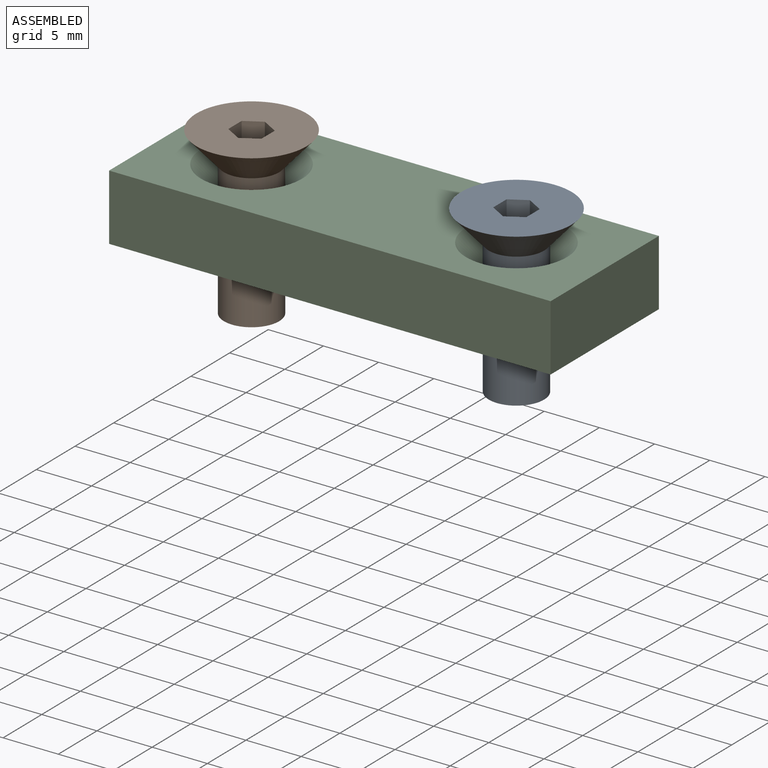
[diagram: assembled view]
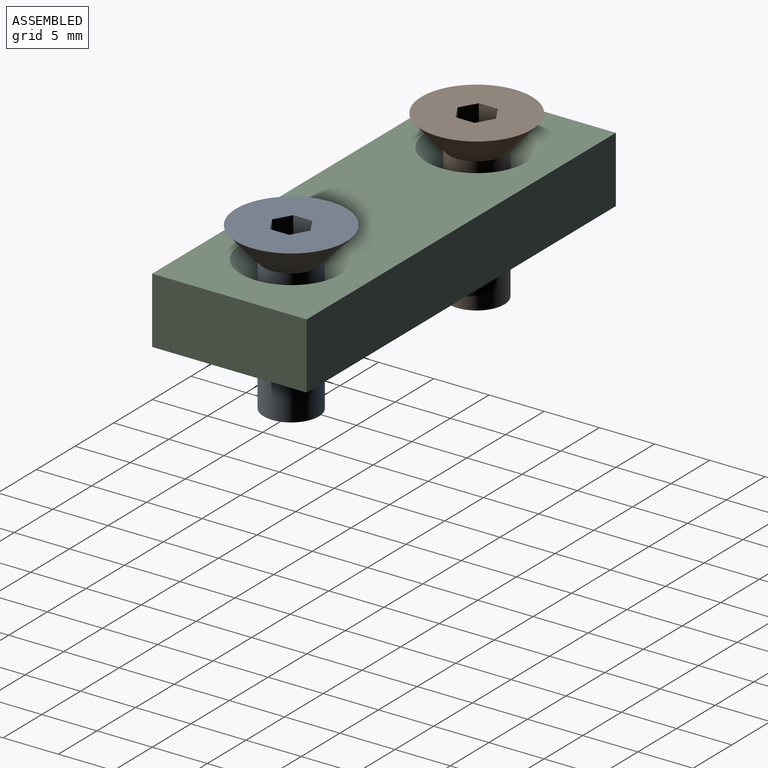
[diagram: assembled view, second angle]
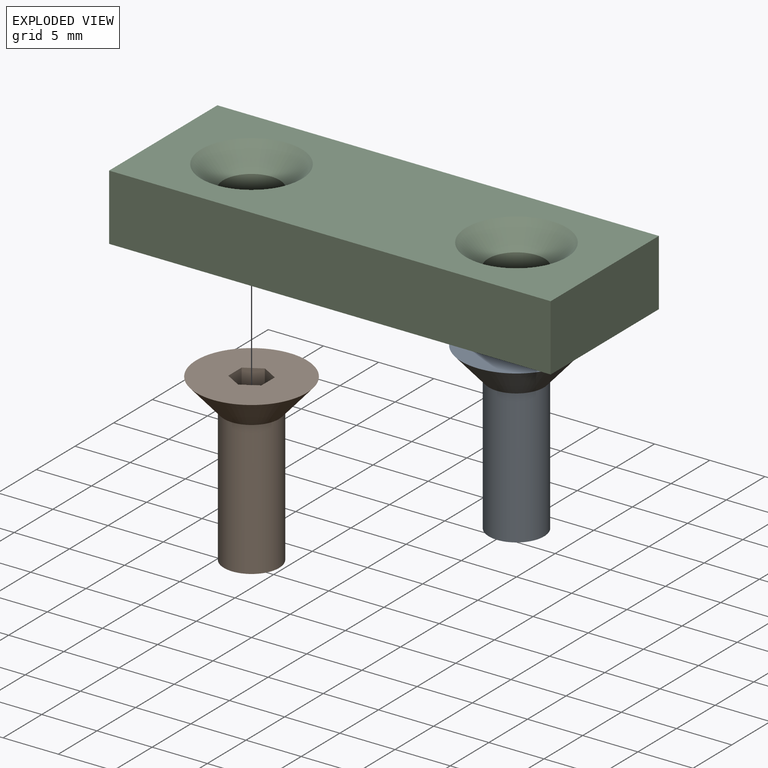
[diagram: exploded view]
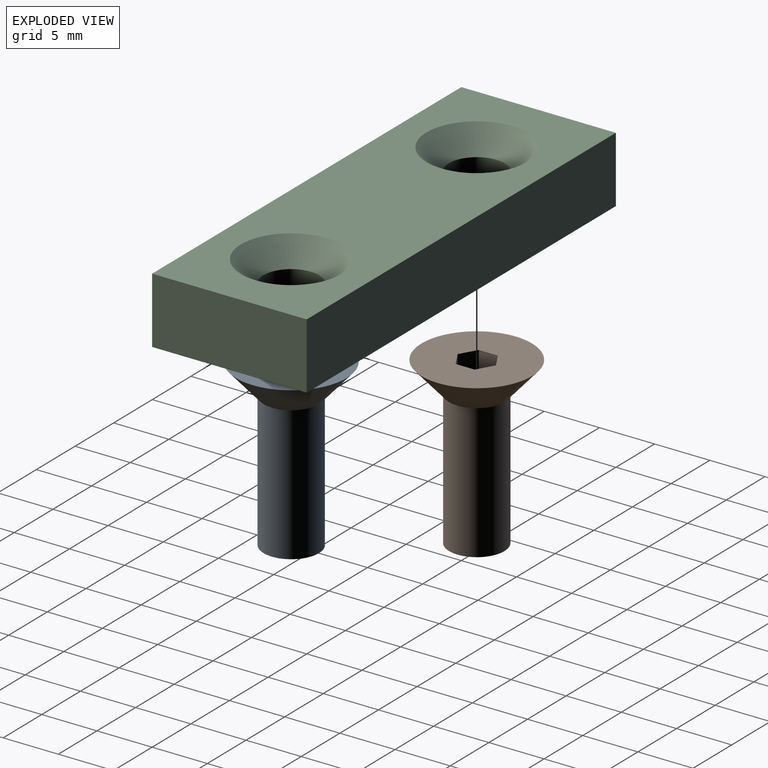
[diagram: exploded view, second angle]
FCSTD DOCUMENT  (FreeCAD 1.0R39109 (Git))
Label: roof_holder_asm
License: All rights reserved
LicenseURL: https://en.wikipedia.org/wiki/All_rights_reserved
objects: App::Link×3, App::FeaturePython×3, Assembly::JointGroup×1, Assembly::AssemblyObject×1
EXTERNAL_REF file=../parts/roof_holder.FCStd obj=Body
EXTERNAL_REF file=dbox_asm.FCStd obj=BOLTS_part

FEATURE [App::Link] roof_holder
  LinkedObject = -> <external ../parts/roof_holder.FCStd>#Body
FEATURE [App::FeaturePython] GroundedJoint  # Assembly grounded joint (typed FeaturePython)
  ObjectToGround = -> roof_holder
FEATURE [App::Link] Hex_socket_countersunk_head_screw_ISO_10642_M5_15_0  label="Hex socket countersunk head screw ISO 10642 M5 15.0"
  LinkPlacement = pos=(12,7e-16,8.8) rot=(1,0,0;3.14159rad)
  LinkedObject = -> <external dbox_asm.FCStd>#BOLTS_part
  Placement = pos=(12,7e-16,8.8) rot=(1,0,0;3.14159rad)
FEATURE [App::Link] Hex_socket_countersunk_head_screw_ISO_10642_M5_15_001  label="Hex socket countersunk head screw ISO 10642 M5 15.001"
  LinkPlacement = pos=(-12,7e-16,8.8) rot=(1,0,0;3.14159rad)
  LinkedObject = -> <external dbox_asm.FCStd>#BOLTS_part
  Placement = pos=(-12,7e-16,8.8) rot=(1,0,0;3.14159rad)
FEATURE [App::FeaturePython] Joint  label="Fixed"  # Assembly joint (typed FeaturePython)
  Activated = true
  AngleMax = 0
  AngleMin = 0
  Detach1 = false
  Detach2 = false
  Distance = 0
  Distance2 = 0
  EnableAngleMax = false
  EnableAngleMin = false
  EnableLengthMax = false
  EnableLengthMin = false
  JointType = 0 (Fixed)
  LengthMax = 0
  LengthMin = 0
  Placement1 = pos=(-12,7e-16,6) rot=(0,0,1;0rad)
  Placement2 = pos=(0,0,2.8) rot=(0,0,1;0rad)
  Reference1 = -> Assembly [roof_holder.Edge21,roof_holder.Edge21]
  Reference2 = -> Assembly [Hex_socket_countersunk_head_screw_ISO_10642_M5_15_001.Edge1,Hex_socket_countersunk_head_screw_ISO_10642_M5_15_001.Edge1]
FEATURE [App::FeaturePython] Joint001  label="Fixed001"  # Assembly joint (typed FeaturePython)
  Activated = true
  AngleMax = 0
  AngleMin = 0
  Detach1 = false
  Detach2 = false
  Distance = 0
  Distance2 = 0
  EnableAngleMax = false
  EnableAngleMin = false
  EnableLengthMax = false
  EnableLengthMin = false
  JointType = 0 (Fixed)
  LengthMax = 0
  LengthMin = 0
  Placement1 = pos=(0,0,2.8) rot=(0,0,1;0rad)
  Placement2 = pos=(12,7e-16,6) rot=(0,0,1;0rad)
  Reference1 = -> Assembly [Hex_socket_countersunk_head_screw_ISO_10642_M5_15_0.Edge1,Hex_socket_countersunk_head_screw_ISO_10642_M5_15_0.Edge1]
  Reference2 = -> Assembly [roof_holder.Edge2,roof_holder.Edge2]
FEATURE [Assembly::JointGroup] Joints
  Group = -> [GroundedJoint,Joint,Joint001]
FEATURE [Assembly::AssemblyObject] Assembly  label="asm_roof_holder"
  Group = -> [Joints,roof_holder,GroundedJoint,Hex_socket_countersunk_head_screw_ISO_10642_M5_15_0,Hex_socket_countersunk_head_screw_ISO_10642_M5_15_001,Joint,Joint001]
  Origin = -> Origin
  Type = Assembly

RESOLVED EXTERNAL PARTS (link-assembly join: the EXTERNAL_REF files above that resolve inside this repo's crawl, each included once):
---- part ../parts/roof_holder.FCStd = doc fcstd_d806aec44957 ----
FCSTD DOCUMENT  (FreeCAD 1.0R39109 (Git))
Label: roof_holder
License: All rights reserved
LicenseURL: https://en.wikipedia.org/wiki/All_rights_reserved
objects: Sketcher::SketchObject×1, PartDesign::Pad×1, PartDesign::Chamfer×1, PartDesign::Body×1
note: 9 computed .brp shape members not serialized (recipe doc carries the construction recipe); baked Part::Feature solids carry a one-line shape summary decoded from their .brp

FEATURE [Sketcher::SketchObject] Sketch
  ArcFitTolerance = 1e-06
  AttachmentSupport = -> [XY_Plane]
  FullyConstrained = true
  MakeInternals = false
  MapMode = 5
  sketch-geometry (7):
    g0: LineSegment StartX=-20 StartY=7 StartZ=0 EndX=-20 EndY=-7 EndZ=0
    g1: LineSegment StartX=-20 StartY=-7 StartZ=0 EndX=20 EndY=-7 EndZ=0
    g2: LineSegment StartX=20 StartY=-7 StartZ=0 EndX=20 EndY=7 EndZ=0
    g3: LineSegment StartX=20 StartY=7 StartZ=0 EndX=-20 EndY=7 EndZ=0
    g4: GeomPoint [constr] X=0 Y=0 Z=0
    g5: Circle CenterX=-12 CenterY=7e-16 CenterZ=0 NormalX=0 NormalY=0 NormalZ=1 AngleXU=0 Radius=2.55
    g6: Circle CenterX=12 CenterY=7e-16 CenterZ=0 NormalX=0 NormalY=0 NormalZ=1 AngleXU=0 Radius=2.55
  constraints (18):
    c: Coincident(g0,g1)
    c: Coincident(g1,g2)
    c: Coincident(g2,g3)
    c: Coincident(g3,g0)
    c: Vertical(g0)
    c: Vertical(g2)
    c: Horizontal(g1)
    c: Horizontal(g3)
    c: Symmetric(g2,g0,g4)
    c: Coincident(g4,g-1)
    c: DistanceX(g3,g3) = 40
    c: DistanceY(g0,g0) = 14
    c: DistanceX(g0,g5) = 8
    c: DistanceX(g6,g2) = 8
    c: Equal(g5,g6)
    c: DistanceY(g5,g0) = 7
    c: Diameter(g5) = 5.1
    c: Horizontal(g5,g6)
FEATURE [PartDesign::Pad] Pad
  Direction = (0,0,1)
  Length = 6
  Length2 = 10
  Profile = -> Sketch
  ReferenceAxis = -> Sketch [N_Axis]
  Refine = true
  Suppressed = false
  Type = 0
FEATURE [PartDesign::Chamfer] Chamfer
  Angle = 45
  Base = -> Pad [Edge18,Edge15]
  BaseFeature = -> Pad
  ChamferType = 0
  FlipDirection = false
  Refine = true
  Size = 2
  Size2 = 1
  SupportTransform = false
  Suppressed = false
  UseAllEdges = false
FEATURE [PartDesign::Body] Body  label="roof_holder"
  AllowCompound = false
  Group = -> [Sketch,Pad,Chamfer]
  Origin = -> Origin
  Tip = -> Chamfer
---- part dbox_asm.FCStd = doc fcstd_04b4048c66aa (140447 chars; too large to inline — full recipe in that document) ----
